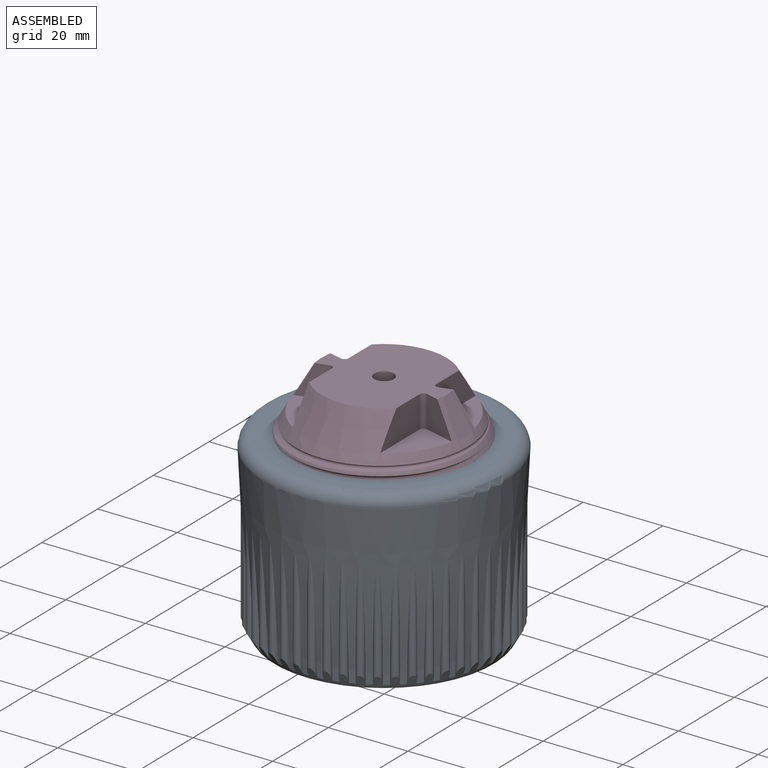
[diagram: assembled view]
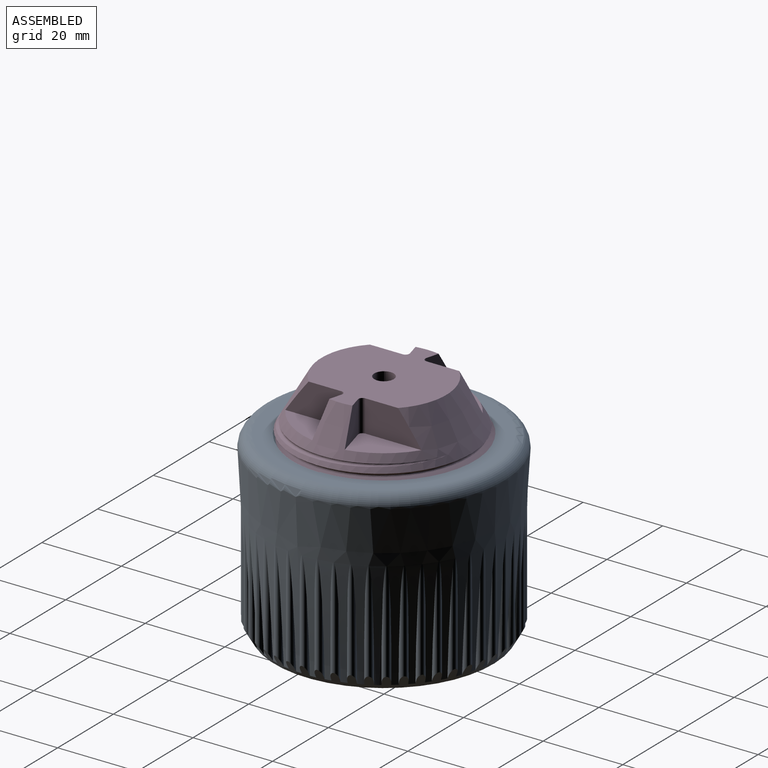
[diagram: assembled view, second angle]
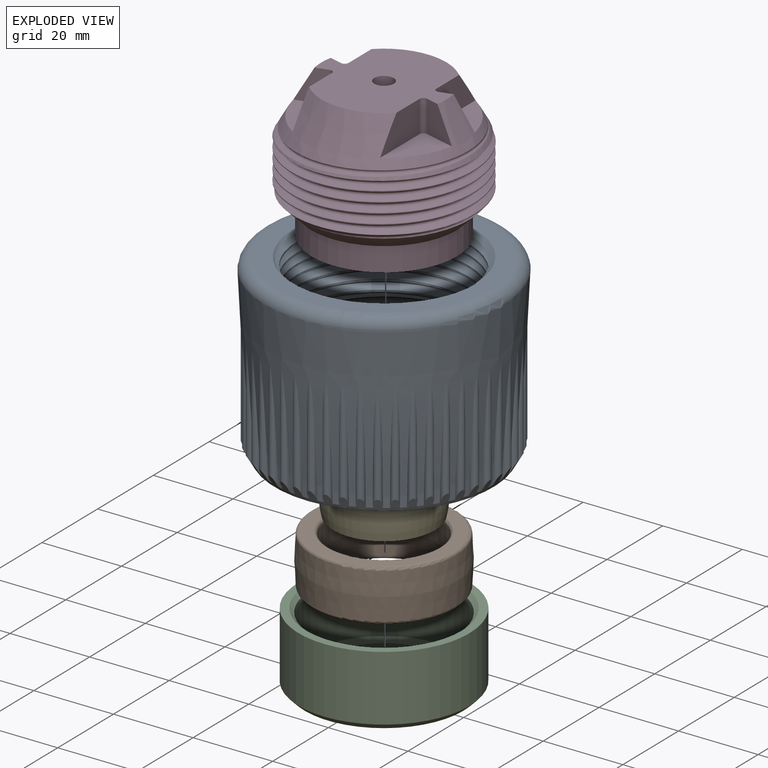
[diagram: exploded view]
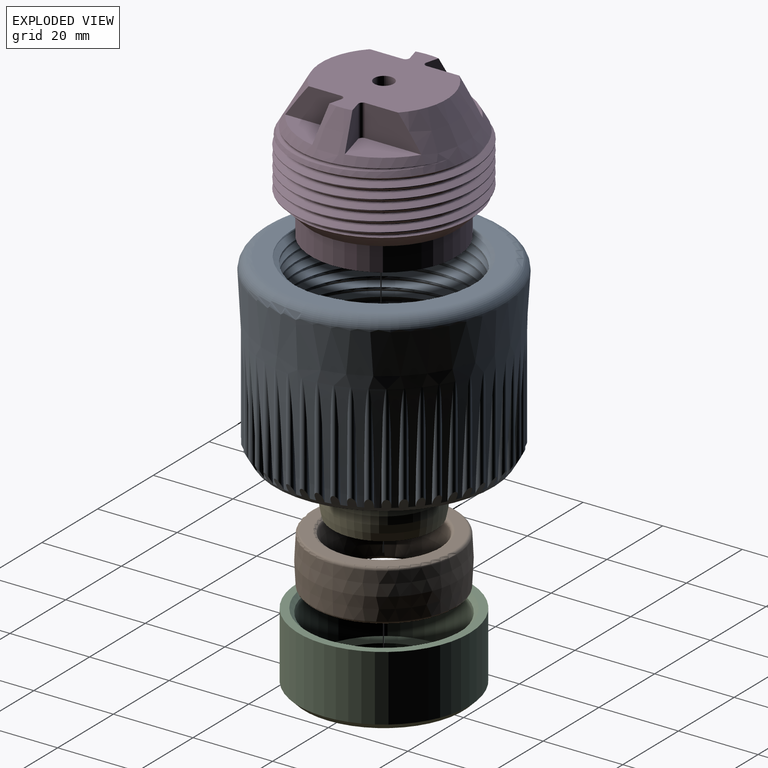
[diagram: exploded view, second angle]
ASSEMBLY  parts=5 mates=4
PART A: 168 faces, bbox 65.5x65.5x46.4 mm
  f0: cone r=28mm half-angle=3deg, axis (0,0,1), area 5093mm2, adj f2,f3,f4,f5,f6,f7,f8,f9
  f1: plane 55x55mm, normal (0,0,-1), area 1338mm2, adj f155,f165
  f2: plane 8.92x0.47mm, normal (0,-1,0), area 1.9mm2, adj f0,f4,f165
  f3: plane 8.92x0.47mm, normal (0,1,0), area 1.9mm2, adj f0,f4,f165
  f4: cylinder r=1mm len=26.93mm, axis (0,0,-1), area 59.6mm2, adj f0,f2,f3,f165,f166
  f5: cylinder r=1mm len=26.93mm, axis (0,0,-1), area 59.6mm2, adj f0,f6,f7,f165
  f6: plane 8.92x0.46mm, normal (0.13,-0.99,0), area 1.9mm2, adj f0,f5,f165
  f7: plane 8.92x0.46mm, normal (-0.13,0.99,0), area 1.9mm2, adj f0,f5,f165
  f8: cylinder r=1mm len=27.06mm, axis (0,0,-1), area 59.6mm2, adj f0,f9,f10,f165
  f9: plane 8.92x0.45mm, normal (0.25,-0.97,0), area 1.9mm2, adj f0,f8,f165
  f10: plane 8.92x0.45mm, normal (-0.25,0.97,0), area 1.9mm2, adj f0,f8,f165
  f11: cylinder r=1mm len=26.93mm, axis (0,0,-1), area 59.5mm2, adj f0,f12,f13,f165
  f12: plane 8.92x0.44mm, normal (0.37,-0.93,0), area 1.9mm2, adj f0,f11,f165
  f13: plane 8.92x0.44mm, normal (-0.37,0.93,0), area 1.9mm2, adj f0,f11,f165
  f14: cylinder r=1mm len=26.92mm, axis (0,0,-1), area 59.6mm2, adj f0,f15,f16,f165
  f15: plane 8.92x0.41mm, normal (0.48,-0.88,0), area 1.9mm2, adj f0,f14,f165
  f16: plane 8.92x0.41mm, normal (-0.48,0.88,0), area 1.9mm2, adj f0,f14,f165
  f17: cylinder r=1mm len=26.93mm, axis (0,0,-1), area 59.5mm2, adj f0,f18,f19,f165
  f18: plane 8.92x0.38mm, normal (0.59,-0.81,0), area 1.9mm2, adj f0,f17,f165
  f19: plane 8.92x0.38mm, normal (-0.59,0.81,0), area 1.9mm2, adj f0,f17,f165
  f20: cylinder r=1mm len=26.93mm, axis (0,0,-1), area 59.6mm2, adj f0,f21,f22,f165
  f21: plane 8.92x0.34mm, normal (0.68,-0.73,0), area 1.9mm2, adj f0,f20,f165
  f22: plane 8.92x0.34mm, normal (-0.68,0.73,0), area 1.9mm2, adj f0,f20,f165
  f23: cylinder r=1mm len=26.93mm, axis (0,0,-1), area 59.6mm2, adj f0,f24,f25,f165
  f24: plane 8.92x0.36mm, normal (0.77,-0.64,0), area 1.9mm2, adj f0,f23,f165
  f25: plane 8.92x0.36mm, normal (-0.77,0.64,0), area 1.9mm2, adj f0,f23,f165
  f26: cylinder r=1mm len=26.93mm, axis (0,0,-1), area 59.6mm2, adj f0,f27,f28,f165
  f27: plane 8.92x0.4mm, normal (0.84,-0.54,0), area 1.9mm2, adj f0,f26,f165
  f28: plane 8.92x0.4mm, normal (-0.84,0.54,0), area 1.9mm2, adj f0,f26,f165
  f29: cylinder r=1mm len=26.93mm, axis (0,0,-1), area 59.6mm2, adj f0,f30,f31,f165
  f30: plane 8.92x0.42mm, normal (0.9,-0.43,0), area 1.9mm2, adj f0,f29,f165
  f31: plane 8.92x0.42mm, normal (-0.9,0.43,0), area 1.9mm2, adj f0,f29,f165
  f32: cylinder r=1mm len=26.93mm, axis (0,0,-1), area 59.6mm2, adj f0,f33,f34,f165
  f33: plane 8.92x0.45mm, normal (0.95,-0.31,0), area 1.9mm2, adj f0,f32,f165
  f34: plane 8.92x0.45mm, normal (-0.95,0.31,0), area 1.9mm2, adj f0,f32,f165
  f35: cylinder r=1mm len=26.93mm, axis (0,0,-1), area 59.6mm2, adj f0,f36,f37,f165
  f36: plane 8.92x0.46mm, normal (0.98,-0.19,0), area 1.9mm2, adj f0,f35,f165
  f37: plane 8.92x0.46mm, normal (-0.98,0.19,0), area 1.9mm2, adj f0,f35,f165
  f38: cylinder r=1mm len=26.93mm, axis (0,0,-1), area 59.6mm2, adj f0,f39,f40,f165
  f39: plane 8.92x0.47mm, normal (1,-0.06,0), area 1.9mm2, adj f0,f38,f165
  f40: plane 8.92x0.47mm, normal (-1,0.06,0), area 1.9mm2, adj f0,f38,f165
  f41: cylinder r=1mm len=27.06mm, axis (0,0,-1), area 59.7mm2, adj f0,f42,f43,f165
  f42: plane 8.92x0.47mm, normal (1,0.06,0), area 1.9mm2, adj f0,f41,f165
  f43: plane 8.92x0.47mm, normal (-1,-0.06,0), area 1.9mm2, adj f0,f41,f165
  f44: cylinder r=1mm len=26.93mm, axis (0,0,-1), area 59.7mm2, adj f0,f45,f46,f165
  f45: plane 8.92x0.46mm, normal (0.98,0.19,0), area 1.9mm2, adj f0,f44,f165
  f46: plane 8.92x0.46mm, normal (-0.98,-0.19,0), area 1.9mm2, adj f0,f44,f165
  f47: cylinder r=1mm len=26.93mm, axis (0,0,-1), area 59.6mm2, adj f0,f48,f49,f165
  f48: plane 8.92x0.45mm, normal (0.95,0.31,0), area 1.9mm2, adj f0,f47,f165
  f49: plane 8.92x0.45mm, normal (-0.95,-0.31,0), area 1.9mm2, adj f0,f47,f165
  f50: cylinder r=1mm len=26.93mm, axis (0,0,-1), area 59.6mm2, adj f0,f51,f52,f165
  f51: plane 8.92x0.42mm, normal (0.9,0.43,0), area 1.9mm2, adj f0,f50,f165
  f52: plane 8.92x0.42mm, normal (-0.9,-0.43,0), area 1.9mm2, adj f0,f50,f165
  f53: cylinder r=1mm len=26.92mm, axis (0,0,-1), area 59.6mm2, adj f0,f54,f55,f165
  f54: plane 8.92x0.4mm, normal (0.84,0.54,0), area 1.9mm2, adj f0,f53,f165
  f55: plane 8.92x0.4mm, normal (-0.84,-0.54,0), area 1.9mm2, adj f0,f53,f165
  f56: cylinder r=1mm len=26.93mm, axis (0,0,-1), area 59.6mm2, adj f0,f57,f58,f165
  f57: plane 8.92x0.36mm, normal (0.77,0.64,0), area 1.9mm2, adj f0,f56,f165
  f58: plane 8.92x0.36mm, normal (-0.77,-0.64,0), area 1.9mm2, adj f0,f56,f165
  f59: cylinder r=1mm len=26.93mm, axis (0,0,-1), area 59.6mm2, adj f0,f60,f61,f165
  f60: plane 8.92x0.34mm, normal (0.68,0.73,0), area 1.9mm2, adj f0,f59,f165
  f61: plane 8.92x0.34mm, normal (-0.68,-0.73,0), area 1.9mm2, adj f0,f59,f165
  f62: cylinder r=1mm len=26.93mm, axis (0,0,-1), area 59.6mm2, adj f0,f63,f64,f165
  f63: plane 8.92x0.38mm, normal (0.59,0.81,0), area 1.9mm2, adj f0,f62,f165
  f64: plane 8.92x0.38mm, normal (-0.59,-0.81,0), area 1.9mm2, adj f0,f62,f165
  f65: cylinder r=1mm len=26.93mm, axis (0,0,-1), area 59.6mm2, adj f0,f66,f67,f165
  f66: plane 8.92x0.41mm, normal (0.48,0.88,0), area 1.9mm2, adj f0,f65,f165
  f67: plane 8.92x0.41mm, normal (-0.48,-0.88,0), area 1.9mm2, adj f0,f65,f165
  f68: cylinder r=1mm len=26.93mm, axis (0,0,-1), area 59.6mm2, adj f0,f69,f70,f165
  f69: plane 8.92x0.44mm, normal (0.37,0.93,0), area 1.9mm2, adj f0,f68,f165
  f70: plane 8.92x0.44mm, normal (-0.37,-0.93,0), area 1.9mm2, adj f0,f68,f165
  f71: cylinder r=1mm len=27.06mm, axis (0,0,-1), area 59.6mm2, adj f0,f72,f73,f165
  f72: plane 8.92x0.45mm, normal (0.25,0.97,0), area 1.9mm2, adj f0,f71,f165
  f73: plane 8.92x0.45mm, normal (-0.25,-0.97,0), area 1.9mm2, adj f0,f71,f165
  f74: cylinder r=1mm len=26.93mm, axis (0,0,-1), area 59.6mm2, adj f0,f75,f76,f165
  f75: plane 8.92x0.46mm, normal (0.13,0.99,0), area 1.9mm2, adj f0,f74,f165
  f76: plane 8.92x0.46mm, normal (-0.13,-0.99,0), area 1.9mm2, adj f0,f74,f165
  f77: cylinder r=1mm len=26.93mm, axis (0,0,-1), area 59.6mm2, adj f0,f78,f79,f165
  f78: plane 8.92x0.47mm, normal (0,1,0), area 1.9mm2, adj f0,f77,f165
  f79: plane 8.92x0.47mm, normal (0,-1,0), area 1.9mm2, adj f0,f77,f165
  f80: cylinder r=1mm len=26.93mm, axis (0,0,-1), area 59.6mm2, adj f0,f81,f82,f165
  f81: plane 8.92x0.46mm, normal (-0.13,0.99,0), area 1.9mm2, adj f0,f80,f165
  f82: plane 8.92x0.46mm, normal (0.13,-0.99,0), area 1.9mm2, adj f0,f80,f165
  f83: cylinder r=1mm len=27.04mm, axis (0,0,-1), area 59.7mm2, adj f0,f84,f85,f165
  f84: plane 8.92x0.45mm, normal (-0.25,0.97,0), area 1.9mm2, adj f0,f83,f165
  f85: plane 8.92x0.45mm, normal (0.25,-0.97,0), area 1.9mm2, adj f0,f83,f165
  f86: cylinder r=1mm len=26.93mm, axis (0,0,-1), area 59.5mm2, adj f0,f87,f88,f165
  f87: plane 8.92x0.44mm, normal (-0.37,0.93,0), area 1.9mm2, adj f0,f86,f165
  f88: plane 8.92x0.44mm, normal (0.37,-0.93,0), area 1.9mm2, adj f0,f86,f165
  f89: cylinder r=1mm len=26.92mm, axis (0,0,-1), area 59.6mm2, adj f0,f90,f91,f165
  f90: plane 8.92x0.41mm, normal (-0.48,0.88,0), area 1.9mm2, adj f0,f89,f165
  f91: plane 8.92x0.41mm, normal (0.48,-0.88,0), area 1.9mm2, adj f0,f89,f165
  f92: cylinder r=1mm len=26.93mm, axis (0,0,-1), area 59.5mm2, adj f0,f93,f94,f165
  f93: plane 8.92x0.38mm, normal (-0.59,0.81,0), area 1.9mm2, adj f0,f92,f165
  f94: plane 8.92x0.38mm, normal (0.59,-0.81,0), area 1.9mm2, adj f0,f92,f165
  f95: cylinder r=1mm len=26.93mm, axis (0,0,-1), area 59.6mm2, adj f0,f96,f97,f165
  f96: plane 8.92x0.34mm, normal (-0.68,0.73,0), area 1.9mm2, adj f0,f95,f165
  f97: plane 8.92x0.34mm, normal (0.68,-0.73,0), area 1.9mm2, adj f0,f95,f165
  f98: cylinder r=1mm len=26.93mm, axis (0,0,-1), area 59.6mm2, adj f0,f99,f100,f165
  f99: plane 8.92x0.36mm, normal (-0.77,0.64,0), area 1.9mm2, adj f0,f98,f165
  f100: plane 8.92x0.36mm, normal (0.77,-0.64,0), area 1.9mm2, adj f0,f98,f165
  f101: cylinder r=1mm len=26.93mm, axis (0,0,-1), area 59.6mm2, adj f0,f102,f103,f165
  f102: plane 8.92x0.4mm, normal (-0.84,0.54,0), area 1.9mm2, adj f0,f101,f165
  f103: plane 8.92x0.4mm, normal (0.84,-0.54,0), area 1.9mm2, adj f0,f101,f165
  f104: cylinder r=1mm len=26.93mm, axis (0,0,-1), area 59.6mm2, adj f0,f105,f106,f165
  f105: plane 8.92x0.42mm, normal (-0.9,0.43,0), area 1.9mm2, adj f0,f104,f165
  f106: plane 8.92x0.42mm, normal (0.9,-0.43,0), area 1.9mm2, adj f0,f104,f165
  f107: cylinder r=1mm len=26.93mm, axis (0,0,-1), area 59.6mm2, adj f0,f108,f109,f165
  f108: plane 8.92x0.45mm, normal (-0.95,0.31,0), area 1.9mm2, adj f0,f107,f165
  f109: plane 8.92x0.45mm, normal (0.95,-0.31,0), area 1.9mm2, adj f0,f107,f165
  f110: cylinder r=1mm len=26.93mm, axis (0,0,-1), area 59.6mm2, adj f0,f111,f112,f165
  f111: plane 8.92x0.46mm, normal (-0.98,0.19,0), area 1.9mm2, adj f0,f110,f165
  f112: plane 8.92x0.46mm, normal (0.98,-0.19,0), area 1.9mm2, adj f0,f110,f165
  f113: cylinder r=1mm len=26.93mm, axis (0,0,-1), area 59.6mm2, adj f0,f114,f115,f165
  f114: plane 8.92x0.47mm, normal (-1,0.06,0), area 1.9mm2, adj f0,f113,f165
  f115: plane 8.92x0.47mm, normal (1,-0.06,0), area 1.9mm2, adj f0,f113,f165
  f116: cylinder r=1mm len=27.06mm, axis (0,0,-1), area 59.7mm2, adj f0,f117,f118,f165
  f117: plane 8.92x0.47mm, normal (-1,-0.06,0), area 1.9mm2, adj f0,f116,f165
  f118: plane 8.92x0.47mm, normal (1,0.06,0), area 1.9mm2, adj f0,f116,f165
  f119: cylinder r=1mm len=26.93mm, axis (0,0,-1), area 59.7mm2, adj f0,f120,f121,f165
  f120: plane 8.92x0.46mm, normal (-0.98,-0.19,0), area 1.9mm2, adj f0,f119,f165
  f121: plane 8.92x0.46mm, normal (0.98,0.19,0), area 1.9mm2, adj f0,f119,f165
  f122: cylinder r=1mm len=26.93mm, axis (0,0,-1), area 59.6mm2, adj f0,f123,f124,f165
  f123: plane 8.92x0.45mm, normal (-0.95,-0.31,0), area 1.9mm2, adj f0,f122,f165
  f124: plane 8.92x0.45mm, normal (0.95,0.31,0), area 1.9mm2, adj f0,f122,f165
  f125: cylinder r=1mm len=26.93mm, axis (0,0,-1), area 59.6mm2, adj f0,f126,f127,f165
  f126: plane 8.92x0.42mm, normal (-0.9,-0.43,0), area 1.9mm2, adj f0,f125,f165
  f127: plane 8.92x0.42mm, normal (0.9,0.43,0), area 1.9mm2, adj f0,f125,f165
  f128: cylinder r=1mm len=26.92mm, axis (0,0,-1), area 59.6mm2, adj f0,f129,f130,f165
  f129: plane 8.92x0.4mm, normal (-0.84,-0.54,0), area 1.9mm2, adj f0,f128,f165
  f130: plane 8.92x0.4mm, normal (0.84,0.54,0), area 1.9mm2, adj f0,f128,f165
  f131: cylinder r=1mm len=26.93mm, axis (0,0,-1), area 59.6mm2, adj f0,f132,f133,f165
  f132: plane 8.92x0.36mm, normal (-0.77,-0.64,0), area 1.9mm2, adj f0,f131,f165
  f133: plane 8.92x0.36mm, normal (0.77,0.64,0), area 1.9mm2, adj f0,f131,f165
  f134: cylinder r=1mm len=26.93mm, axis (0,0,-1), area 59.6mm2, adj f0,f135,f136,f165
  f135: plane 8.92x0.34mm, normal (-0.68,-0.73,0), area 1.9mm2, adj f0,f134,f165
  f136: plane 8.92x0.34mm, normal (0.68,0.73,0), area 1.9mm2, adj f0,f134,f165
  f137: cylinder r=1mm len=26.93mm, axis (0,0,-1), area 59.6mm2, adj f0,f138,f139,f165
  f138: plane 8.92x0.38mm, normal (-0.59,-0.81,0), area 1.9mm2, adj f0,f137,f165
  f139: plane 8.92x0.38mm, normal (0.59,0.81,0), area 1.9mm2, adj f0,f137,f165
  f140: cylinder r=1mm len=26.93mm, axis (0,0,-1), area 59.6mm2, adj f0,f141,f142,f165
  f141: plane 8.92x0.41mm, normal (-0.48,-0.88,0), area 1.9mm2, adj f0,f140,f165
  f142: plane 8.92x0.41mm, normal (0.48,0.88,0), area 1.9mm2, adj f0,f140,f165
  f143: cylinder r=1mm len=26.93mm, axis (0,0,-1), area 59.6mm2, adj f0,f144,f145,f165
  f144: plane 8.92x0.44mm, normal (-0.37,-0.93,0), area 1.9mm2, adj f0,f143,f165
  f145: plane 8.92x0.44mm, normal (0.37,0.93,0), area 1.9mm2, adj f0,f143,f165
  f146: cylinder r=1mm len=27.04mm, axis (0,0,-1), area 59.6mm2, adj f0,f147,f148,f165
  f147: plane 8.92x0.45mm, normal (-0.25,-0.97,0), area 1.9mm2, adj f0,f146,f165
  f148: plane 8.92x0.45mm, normal (0.25,0.97,0), area 1.9mm2, adj f0,f146,f165
  f149: cylinder r=1mm len=26.93mm, axis (0,0,-1), area 59.6mm2, adj f0,f150,f151,f165
  f150: plane 8.92x0.46mm, normal (-0.13,-0.99,0), area 1.9mm2, adj f0,f149,f165
  f151: plane 8.92x0.46mm, normal (0.13,0.99,0), area 1.9mm2, adj f0,f149,f165
  f152: plane 54.57x54.57mm, normal (0,0,1), area 670.8mm2, adj f153,f161,f162,f164,f167
  f153: cone r=21.62mm half-angle=45deg, axis (0,0,1), area 133.6mm2, adj f152,f156,f162,f163,f164
  f154: cylinder r=15mm len=30mm, axis (0,0,1), area 141.4mm2, adj f155,f159
  f155: cone r=15mm half-angle=30deg, axis (0,0,-1), area 661.9mm2, adj f1,f154
  f156: cylinder r=21.62mm len=43.24mm, axis (0,0,1), area 658.8mm2, adj f153,f157,f163,f164
  f157: torus R=21.62mm, axis (0,0,1), area 650.2mm2, adj f156,f158,f161,f163,f164
  f158: cylinder r=21.62mm len=43.24mm, axis (0,0,1), area 1969.7mm2, adj f157,f160
  f159: plane 41.64x41.64mm, normal (0,0,1), area 654.9mm2, adj f154,f160
  f160: torus R=20.82mm, axis (0,0,-1), area 168.4mm2, adj f158,f159
  f161: bspline ~53.63x46.44mm, area 492mm2, adj f152,f157,f162,f163,f164
  f162: plane 0.88x0.63mm, normal (0,-1,0), area 0.1mm2, adj f152,f153,f161,f163
  f163: bspline ~53.28x46.14mm, area 1784.7mm2, adj f153,f156,f157,f161,f162
  f164: bspline ~53.28x46.14mm, area 1793.7mm2, adj f152,f153,f156,f157,f161
  f165: cone r=27.5mm half-angle=30deg, axis (0,0,1), area 440mm2, adj f0,f1,f2,f3,f4,f5,f6,f7
  f166: cone r=27.5mm half-angle=30deg, axis (0,0,1), area 0mm2, adj f4,f165
  f167: torus R=27.2mm, axis (0,0,-1), area 891.6mm2, adj f0,f152
PART B: 10 faces, bbox 39.4x39.4x13 mm
  f0: cone r=13.5mm half-angle=3deg, axis (0,0,1), area 493.1mm2, adj f3,f8
  f1: plane 34.8x34.8mm, normal (0,0,1), area 281.5mm2, adj f8,f9
  f2: cone r=18.5mm half-angle=3deg, axis (0,0,-1), area 662.9mm2, adj f4,f9
  f3: cone r=13.5mm half-angle=3deg, axis (0,0,-1), area 493.1mm2, adj f0,f6
  f4: cone r=18.5mm half-angle=3deg, axis (0,0,1), area 662.9mm2, adj f2,f7
  f5: plane 34.8x34.8mm, normal (0,0,-1), area 281.5mm2, adj f6,f7
  f6: torus R=14.6mm, axis (0,0,1), area 107.6mm2, adj f3,f5
  f7: torus R=17.4mm, axis (0,0,1), area 136.6mm2, adj f4,f5
  f8: torus R=14.6mm, axis (0,0,1), area 107.6mm2, adj f0,f1
  f9: torus R=17.4mm, axis (0,0,1), area 136.6mm2, adj f1,f2
PART C: 8 faces, bbox 43x43x18 mm
  f0: cylinder r=21.5mm len=43mm, axis (0,0,1), area 2229mm2, adj f1,f7
  f1: plane 43x43mm, normal (0,0,1), area 257.6mm2, adj f0,f6
  f2: cylinder r=18.5mm len=37mm, axis (0,0,1), area 1627.3mm2, adj f3,f6
  f3: plane 37x37mm, normal (0,0,1), area 368.4mm2, adj f2,f4
  f4: cylinder r=15mm len=30mm, axis (0,0,1), area 282.7mm2, adj f3,f5
  f5: plane 40x40mm, normal (0,0,-1), area 549.8mm2, adj f4,f7
  f6: cone r=18.5mm half-angle=45deg, axis (0,0,1), area 168.8mm2, adj f1,f2
  f7: cone r=21.5mm half-angle=45deg, axis (0,0,1), area 276.6mm2, adj f0,f5
PART D: 41 faces, bbox 47x46.9x35 mm
  f0: cone r=23mm half-angle=30deg, axis (0,0,-1), area 1042.8mm2, adj f1,f3,f22,f23,f24,f25,f26,f27
  f1: plane 31.45x31.45mm, normal (0,0,1), area 656.2mm2, adj f0,f2,f26,f27,f29,f30,f32,f33
  f2: cylinder r=2.45mm len=25mm, axis (0,0,1), area 384.8mm2, adj f1,f15
  f3: cylinder r=23mm len=46mm, axis (0,0,1), area 148.8mm2, adj f0,f8,f22,f24
  f4: plane 18.63x18.63mm, normal (0,0,-1), area 207.1mm2, adj f5,f16,f17,f18,f19,f20,f21
  f5: cone r=9.32mm half-angle=20deg, axis (0,0,-1), area 417.6mm2, adj f4,f6
  f6: plane 36.6x36.6mm, normal (0,0,-1), area 636.6mm2, adj f5,f7
  f7: cylinder r=18.3mm len=36.6mm, axis (0,0,1), area 689.9mm2, adj f6,f8
  f8: cone r=18.3mm half-angle=45deg, axis (0,0,1), area 683.5mm2, adj f3,f7,f22,f23,f24
  f9: plane 4.45x3.5mm, normal (0,-1,0), area 15.6mm2, adj f10,f14,f15,f19
  f10: plane 3.85x3.5mm, normal (-0.87,-0.5,0), area 15.6mm2, adj f9,f11,f15,f17
  f11: plane 3.85x3.5mm, normal (-0.87,0.5,0), area 15.6mm2, adj f10,f12,f15,f16
  f12: plane 4.45x3.5mm, normal (0,1,0), area 15.6mm2, adj f11,f13,f15,f18
  f13: plane 3.85x3.5mm, normal (0.87,0.5,0), area 15.6mm2, adj f12,f14,f15,f20
  f14: plane 3.85x3.5mm, normal (0.87,-0.5,0), area 15.6mm2, adj f9,f13,f15,f21
  f15: plane 8.89x7.7mm, normal (0,0,-1), area 32.5mm2, adj f2,f9,f10,f11,f12,f13,f14
  f16: plane 4.35x2.8mm, normal (-0.61,0.35,-0.71), area 3.3mm2, adj f4,f11,f17,f18
  f17: plane 4.35x2.8mm, normal (-0.61,-0.35,-0.71), area 3.3mm2, adj f4,f10,f16,f19
  f18: plane 5.02x0.5mm, normal (0,0.71,-0.71), area 3.3mm2, adj f4,f12,f16,f20
  f19: plane 5.02x0.5mm, normal (0,-0.71,-0.71), area 3.3mm2, adj f4,f9,f17,f21
  f20: plane 4.35x2.8mm, normal (0.61,0.35,-0.71), area 3.3mm2, adj f4,f13,f18,f21
  f21: plane 4.35x2.8mm, normal (0.61,-0.35,-0.71), area 3.3mm2, adj f4,f14,f19,f20
  f22: bspline ~46.93x46.9mm, area 1213mm2, adj f0,f3,f8,f23
  f23: bspline ~43.79x43.77mm, area 735.8mm2, adj f0,f8,f22,f24
  f24: bspline ~46.93x46.9mm, area 1213.1mm2, adj f0,f3,f8,f23
  f25: plane 15.11x8.93mm, normal (0,0,1), area 85.3mm2, adj f0,f26,f27,f39
  f26: plane 8.04x7.71mm, normal (-0.26,-0.97,0), area 45mm2, adj f0,f1,f25,f39
  f27: plane 14.11x8mm, normal (1,0,0), area 90mm2, adj f0,f1,f25,f39
  f28: plane 15.11x8.93mm, normal (0,0,1), area 85.3mm2, adj f0,f29,f30,f40
  f29: plane 14.11x8mm, normal (-1,0,0), area 90mm2, adj f0,f1,f28,f40
  f30: plane 8.04x7.71mm, normal (0.26,-0.97,0), area 45mm2, adj f0,f1,f28,f40
  f31: plane 15.11x8.93mm, normal (0,0,1), area 85.3mm2, adj f0,f32,f33,f37
  f32: plane 8.04x7.71mm, normal (-0.26,0.97,0), area 45mm2, adj f0,f1,f31,f37
  f33: plane 14.11x8mm, normal (1,0,0), area 90mm2, adj f0,f1,f31,f37
  f34: plane 15.11x8.93mm, normal (0,0,1), area 85.3mm2, adj f0,f35,f36,f38
  f35: plane 14.11x8mm, normal (-1,0,0), area 90mm2, adj f0,f1,f34,f38
  f36: plane 8.04x7.71mm, normal (0.26,0.97,0), area 45mm2, adj f0,f1,f34,f38
  f37: cylinder r=1mm len=8mm, axis (0,0,-1), area 14.7mm2, adj f1,f31,f32,f33
  f38: cylinder r=1mm len=8mm, axis (0,0,-1), area 14.7mm2, adj f1,f34,f35,f36
  f39: cylinder r=1mm len=8mm, axis (0,0,-1), area 14.7mm2, adj f1,f25,f26,f27
  f40: cylinder r=1mm len=8mm, axis (0,0,-1), area 14.7mm2, adj f1,f28,f29,f30
PART E: 5 faces, bbox 27x27x9.9 mm
  f0: plane 25.76x25.76mm, normal (0,0,1), area 190.3mm2, adj f1,f4
  f1: revolved ~27x27mm, area 835.5mm2, adj f0,f2
  f2: plane 25.76x25.76mm, normal (0,0,-1), area 190.3mm2, adj f1,f3
  f3: cone r=10mm half-angle=3deg, axis (0,0,-1), area 315.5mm2, adj f2,f4
  f4: cone r=10.26mm half-angle=3deg, axis (0,0,1), area 315.5mm2, adj f0,f3
PLACE A t=(0,0,-0.5)mm
PLACE B t=(0,0,-6.5)mm
PLACE C t=(0,0,-7)mm
PLACE D t=(0,0,17.5)mm
PLACE E t=(0,0,-4.95)mm
MATE fastened C.f7 <-> B.f2  axis (0,0,1) through (0,0,-13)mm
MATE fastened A.f153 <-> C.f7  axis (0,0,1) through (0,0,-16)mm
MATE fastened D.f0 <-> E.f3  axis (0,0,-1) through (0,0,0)mm
MATE slider B.f2 <-> E.f4  axis (0,0,1) through (0,0,0)mm
